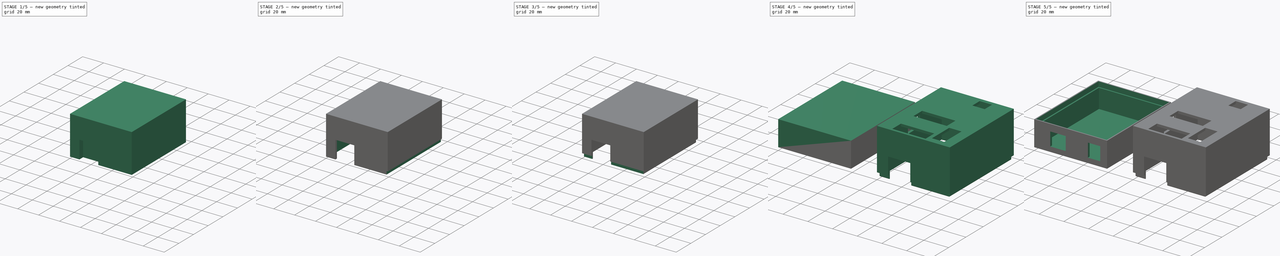
[diagram: build sequence overview — one tinted view per stage of 5, left to right]
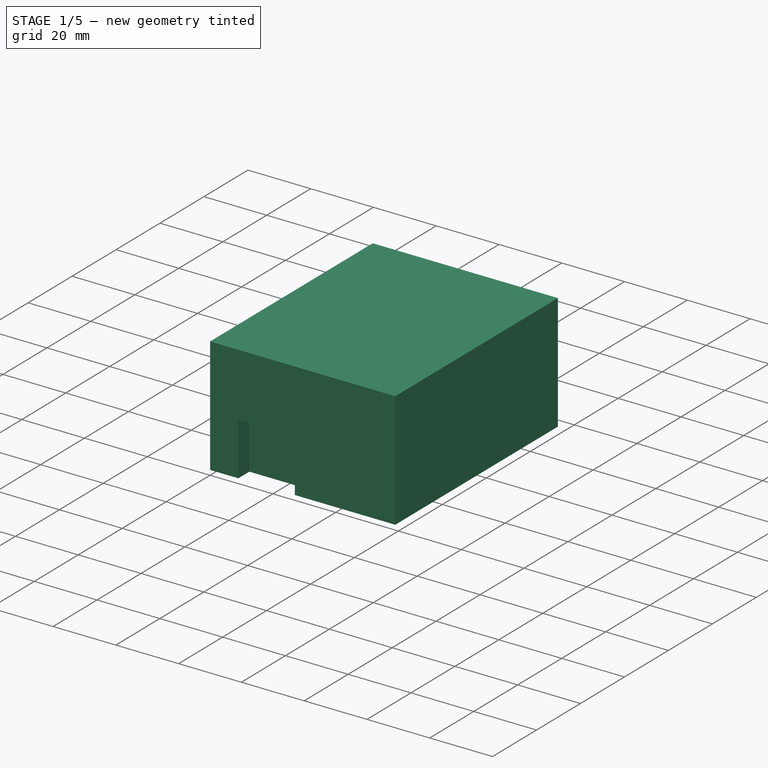
[diagram: stage 1 of 5 — iso view after this stage's code; geometry added in this stage tinted green]
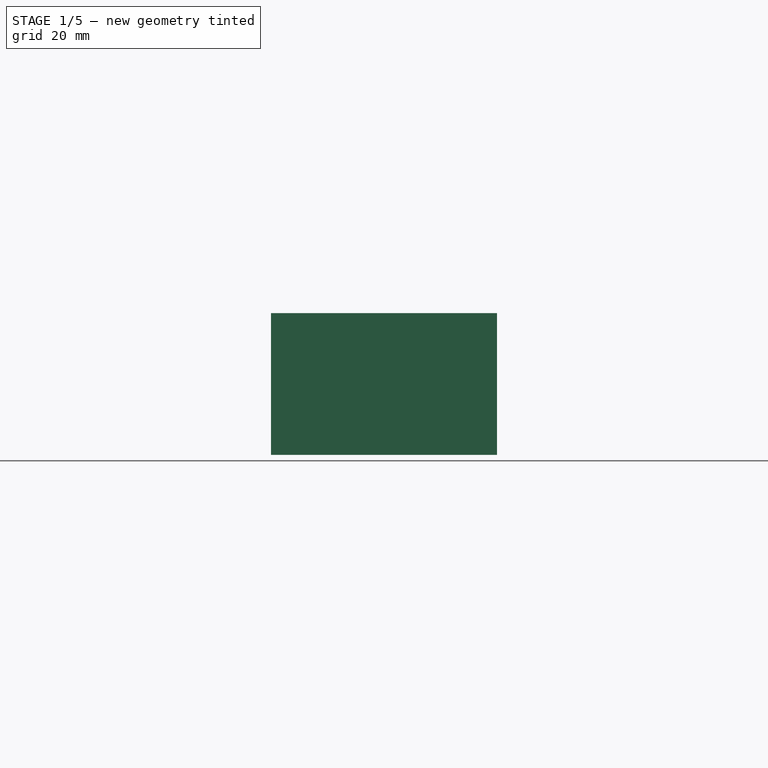
[diagram: stage 1 of 5 — front view after this stage's code; geometry added in this stage tinted green]
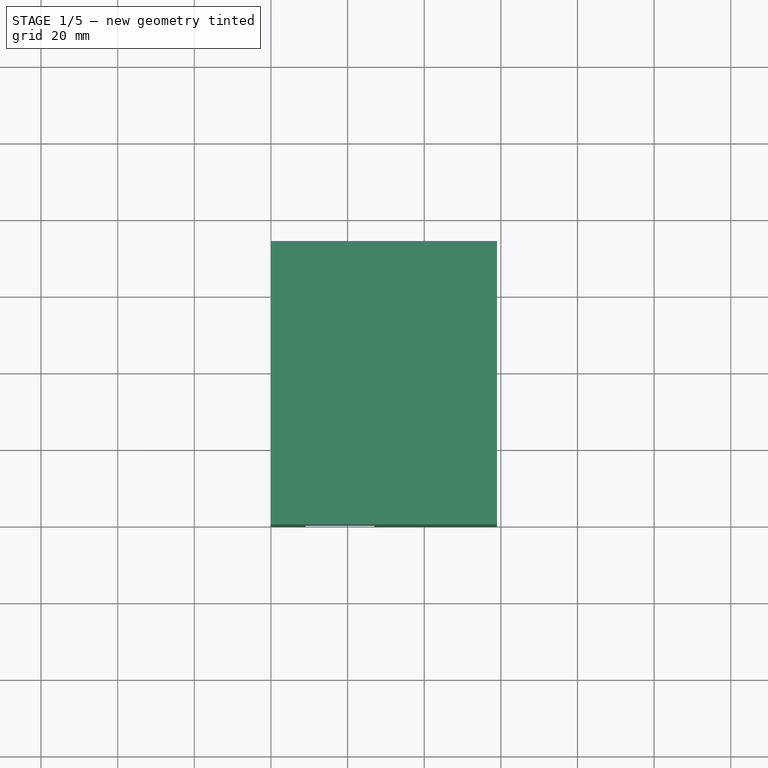
[diagram: stage 1 of 5 — top view after this stage's code; geometry added in this stage tinted green]
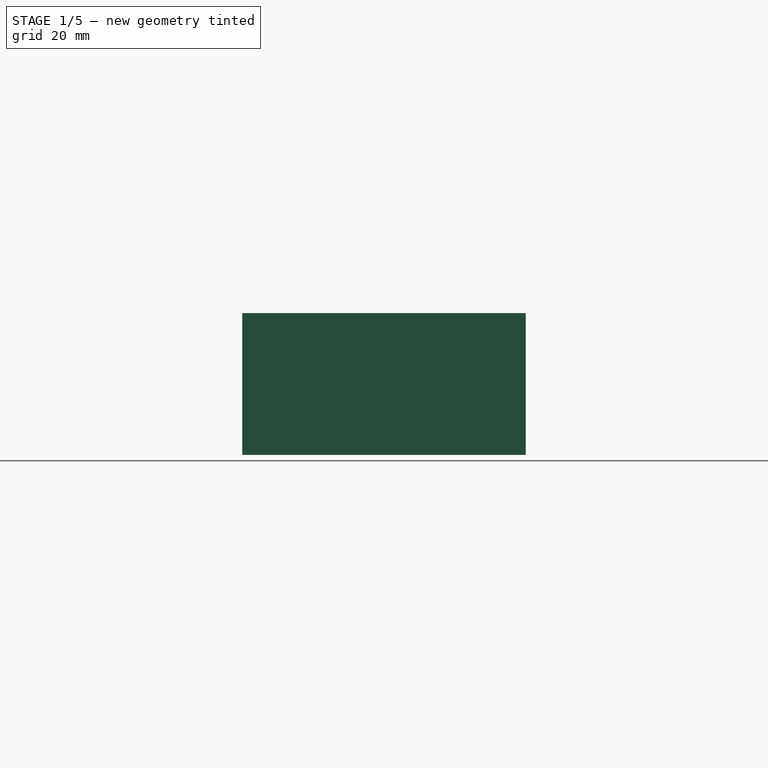
[diagram: stage 1 of 5 — right view after this stage's code; geometry added in this stage tinted green]
FCSTD DOCUMENT  (FreeCAD 0.14R3700 (Git))
Label: MRdatalogger
License: CC-BY 3.0
LicenseURL: http://creativecommons.org/licenses/by/3.0/
objects: Sketcher::SketchObject×14, PartDesign::Pocket×12, PartDesign::Pad×2, App::DocumentObjectGroup×2, Part::Fillet×1
note: 43 computed .brp shape members not serialized (recipe doc carries the construction recipe); baked Part::Feature solids carry a one-line shape summary decoded from their .brp

FEATURE [App::DocumentObjectGroup] Group  label="Bottom part"
  Group = -> [Pad,Pocket,Pocket001,Pocket002]
FEATURE [Sketcher::SketchObject] Sketch004
  sketch-geometry (4):
    g0: LineSegment StartX=0 StartY=0 StartZ=0 EndX=59 EndY=0 EndZ=0
    g1: LineSegment StartX=59 StartY=0 StartZ=0 EndX=59 EndY=74 EndZ=0
    g2: LineSegment StartX=59 StartY=74 StartZ=0 EndX=0 EndY=74 EndZ=0
    g3: LineSegment StartX=0 StartY=74 StartZ=0 EndX=0 EndY=0 EndZ=0
  constraints (11):
    c: Coincident(g0,g1)
    c: Coincident(g1,g2)
    c: Coincident(g2,g3)
    c: Coincident(g3,g0)
    c: Horizontal(g0)
    c: Horizontal(g2)
    c: Vertical(g1)
    c: Vertical(g3)
    c: Coincident(g0,g-1)
    c: DistanceX(g0) = 59
    c: DistanceY(g1) = 74
FEATURE [PartDesign::Pad] Pad001
  Length = 37
  Length2 = 100
  Sketch = -> Sketch004
  Type = 0
FEATURE [Sketcher::SketchObject] Sketch005
  Placement = pos=(0,0,0) rot=(1,0,0;1.5708rad)
  Support = -> Pad001 [Face1]
  sketch-geometry (4):
    g0: LineSegment StartX=9 StartY=0 StartZ=0 EndX=27 EndY=0 EndZ=0
    g1: LineSegment StartX=27 StartY=0 StartZ=0 EndX=27 EndY=17 EndZ=0
    g2: LineSegment StartX=27 StartY=17 StartZ=0 EndX=9 EndY=17 EndZ=0
    g3: LineSegment StartX=9 StartY=17 StartZ=0 EndX=9 EndY=0 EndZ=0
  constraints (12):
    c: Coincident(g0,g1)
    c: Coincident(g1,g2)
    c: Coincident(g2,g3)
    c: Coincident(g3,g0)
    c: Horizontal(g0)
    c: Horizontal(g2)
    c: Vertical(g1)
    c: Vertical(g3)
    c: PointOnObject(g0,g-1)
    c: DistanceX(g2) = -18
    c: DistanceY(g3) = -17
    c: DistanceX(g-1,g0) = 9
FEATURE [PartDesign::Pocket] Pocket003
  Length = 5
  Sketch = -> Sketch005
  Type = 0
FEATURE [Sketcher::SketchObject] Sketch006
  ExternalGeometry = -> [Pocket003]
  Placement = pos=(0,74,0) rot=(0,0.707107,0.707107;3.14159rad)
  Support = -> Pocket003 [Face10]
  sketch-geometry (4):
    g0: LineSegment StartX=-47 StartY=0 StartZ=0 EndX=-34 EndY=0 EndZ=0
    g1: LineSegment StartX=-34 StartY=0 StartZ=0 EndX=-34 EndY=5 EndZ=0
    g2: LineSegment StartX=-34 StartY=5 StartZ=0 EndX=-47 EndY=5 EndZ=0
    g3: LineSegment StartX=-47 StartY=5 StartZ=0 EndX=-47 EndY=0 EndZ=0
  constraints (12):
    c: Coincident(g0,g1)
    c: Coincident(g1,g2)
    c: Coincident(g2,g3)
    c: Coincident(g3,g0)
    c: Horizontal(g0)
    c: Horizontal(g2)
    c: Vertical(g1)
    c: Vertical(g3)
    c: PointOnObject(g0,g-1)
    c: DistanceX(g2) = -13
    c: DistanceY(g1) = 5
    c: DistanceX(g-3,g0) = 12
FEATURE [PartDesign::Pocket] Pocket004
  Length = 5
  Sketch = -> Sketch006
  Type = 0
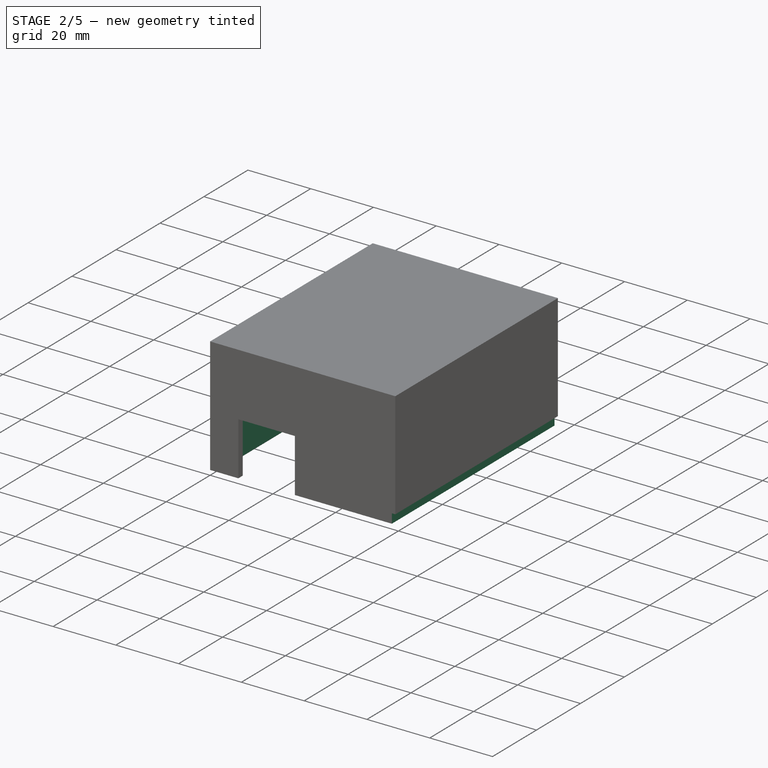
[diagram: stage 2 of 5 — iso view after this stage's code; geometry added in this stage tinted green]
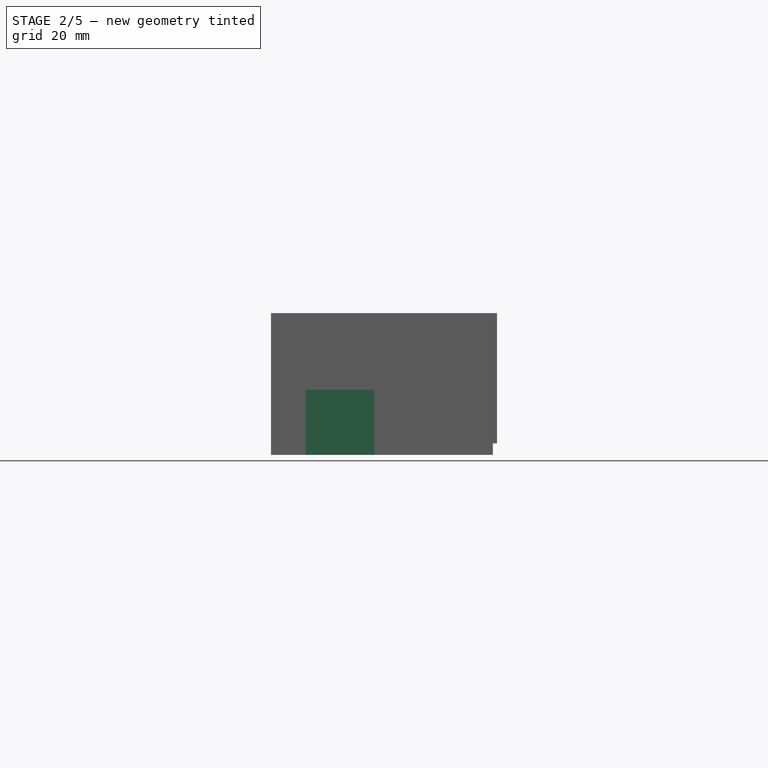
[diagram: stage 2 of 5 — front view after this stage's code; geometry added in this stage tinted green]
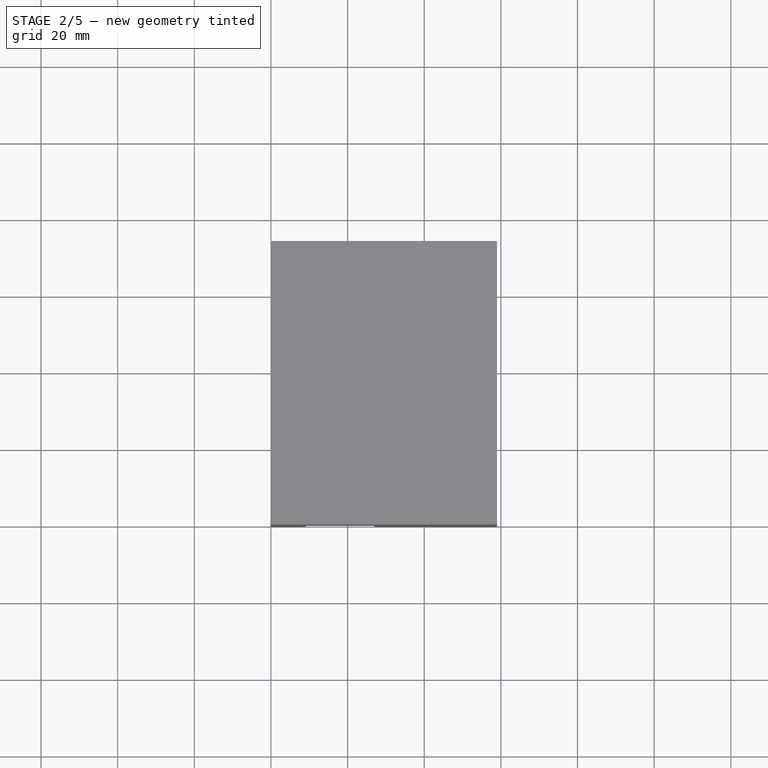
[diagram: stage 2 of 5 — top view after this stage's code; geometry added in this stage tinted green]
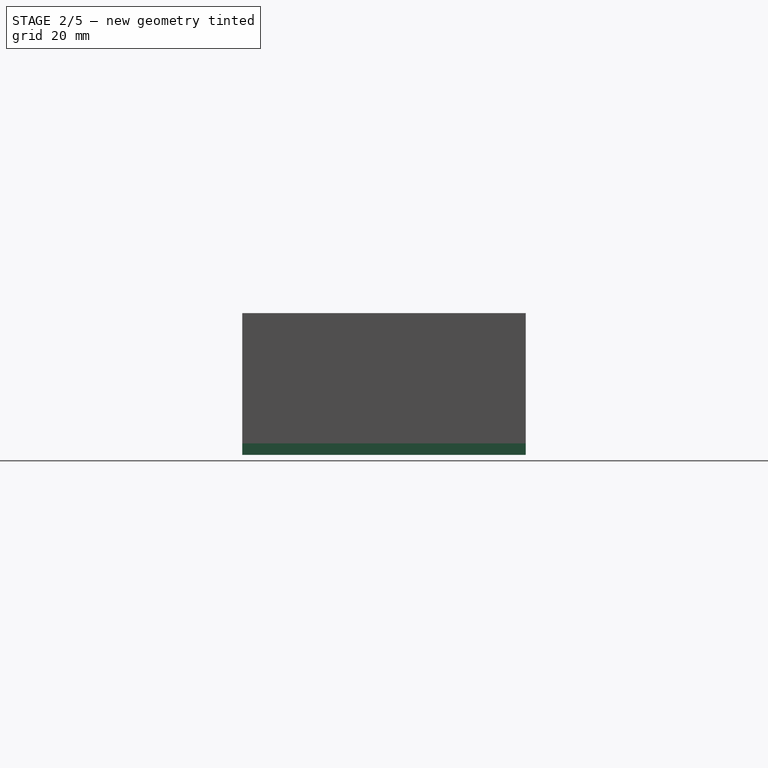
[diagram: stage 2 of 5 — right view after this stage's code; geometry added in this stage tinted green]
FEATURE [Sketcher::SketchObject] Sketch007
  Placement = pos=(0,0,0) rot=(0.57735,-0.57735,-0.57735;2.0944rad)
  Support = -> Pocket004 [Face8]
  sketch-geometry (4):
    g0: LineSegment StartX=-47 StartY=35 StartZ=0 EndX=-33 EndY=35 EndZ=0
    g1: LineSegment StartX=-33 StartY=35 StartZ=0 EndX=-33 EndY=19 EndZ=0
    g2: LineSegment StartX=-33 StartY=19 StartZ=0 EndX=-47 EndY=19 EndZ=0
    g3: LineSegment StartX=-47 StartY=19 StartZ=0 EndX=-47 EndY=35 EndZ=0
  constraints (10):
    c: Coincident(g0,g1)
    c: Coincident(g1,g2)
    c: Coincident(g2,g3)
    c: Coincident(g3,g0)
    c: Horizontal(g0)
    c: Horizontal(g2)
    c: Vertical(g1)
    c: Vertical(g3)
    c: DistanceX(g0) = 14
    c: DistanceY(g1) = -16
FEATURE [PartDesign::Pocket] Pocket005
  Length = 5
  Sketch = -> Sketch007
  Type = 0
FEATURE [Sketcher::SketchObject] Sketch009
  Placement = pos=(0,0,0) rot=(1,0,0;3.14159rad)
  Support = -> Pocket005 [Face2]
  sketch-geometry (4):
    g0: LineSegment StartX=2 StartY=-2 StartZ=0 EndX=57 EndY=-2 EndZ=0
    g1: LineSegment StartX=57 StartY=-2 StartZ=0 EndX=57 EndY=-72 EndZ=0
    g2: LineSegment StartX=57 StartY=-72 StartZ=0 EndX=2 EndY=-72 EndZ=0
    g3: LineSegment StartX=2 StartY=-72 StartZ=0 EndX=2 EndY=-2 EndZ=0
  constraints (10):
    c: Coincident(g0,g1)
    c: Coincident(g1,g2)
    c: Coincident(g2,g3)
    c: Coincident(g3,g0)
    c: Horizontal(g0)
    c: Horizontal(g2)
    c: Vertical(g1)
    c: Vertical(g3)
    c: DistanceX(g2) = -55
    c: DistanceY(g1) = -70
FEATURE [PartDesign::Pocket] Pocket006
  Length = 35
  Sketch = -> Sketch009
  Type = 0
FEATURE [Sketcher::SketchObject] Sketch010
  Placement = pos=(59,0,0) rot=(0.57735,0.57735,0.57735;2.0944rad)
  Support = -> Pocket006 [Face7]
  sketch-geometry (4):
    g0: LineSegment StartX=0 StartY=0 StartZ=0 EndX=74 EndY=0 EndZ=0
    g1: LineSegment StartX=74 StartY=0 StartZ=0 EndX=74 EndY=3 EndZ=0
    g2: LineSegment StartX=74 StartY=3 StartZ=0 EndX=0 EndY=3 EndZ=0
    g3: LineSegment StartX=0 StartY=3 StartZ=0 EndX=0 EndY=0 EndZ=0
  constraints (10):
    c: Coincident(g0,g1)
    c: Coincident(g1,g2)
    c: Coincident(g2,g3)
    c: Coincident(g3,g0)
    c: Horizontal(g0)
    c: Horizontal(g2)
    c: Vertical(g1)
    c: Vertical(g3)
    c: Coincident(g0,g-1)
    c: DistanceY(g3) = -3
FEATURE [PartDesign::Pocket] Pocket007
  Length = 1.1
  Sketch = -> Sketch010
  Type = 0
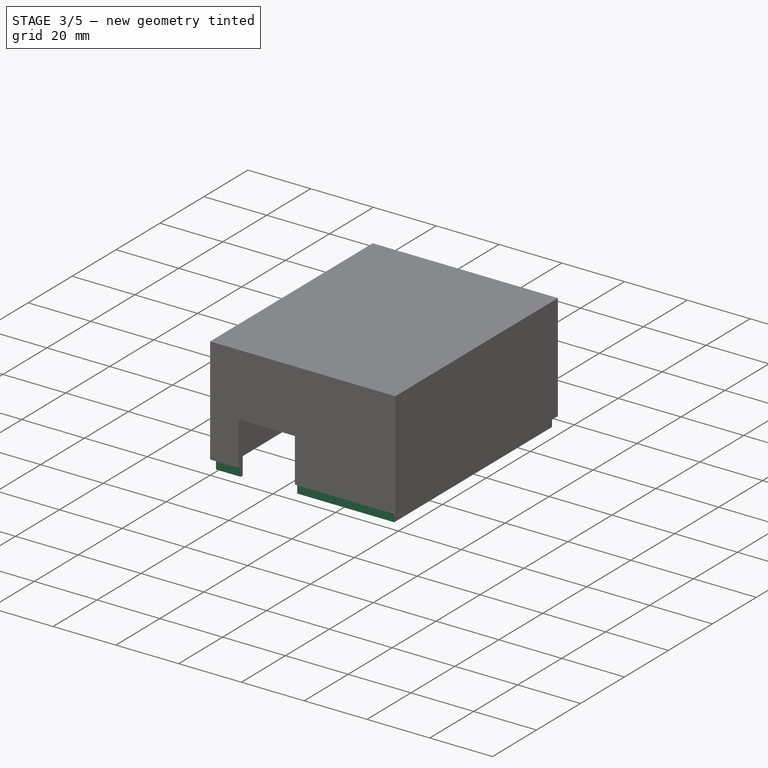
[diagram: stage 3 of 5 — iso view after this stage's code; geometry added in this stage tinted green]
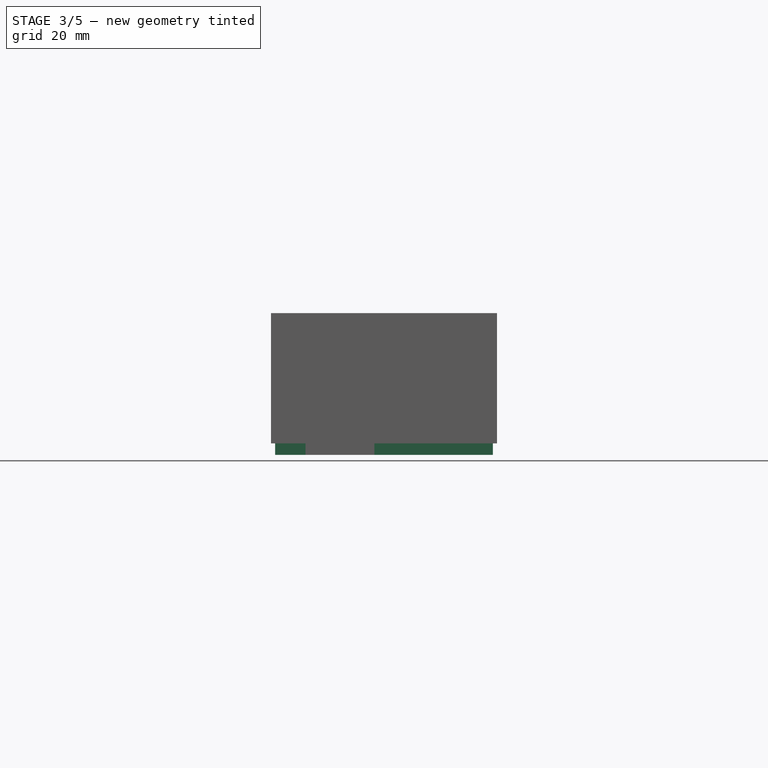
[diagram: stage 3 of 5 — front view after this stage's code; geometry added in this stage tinted green]
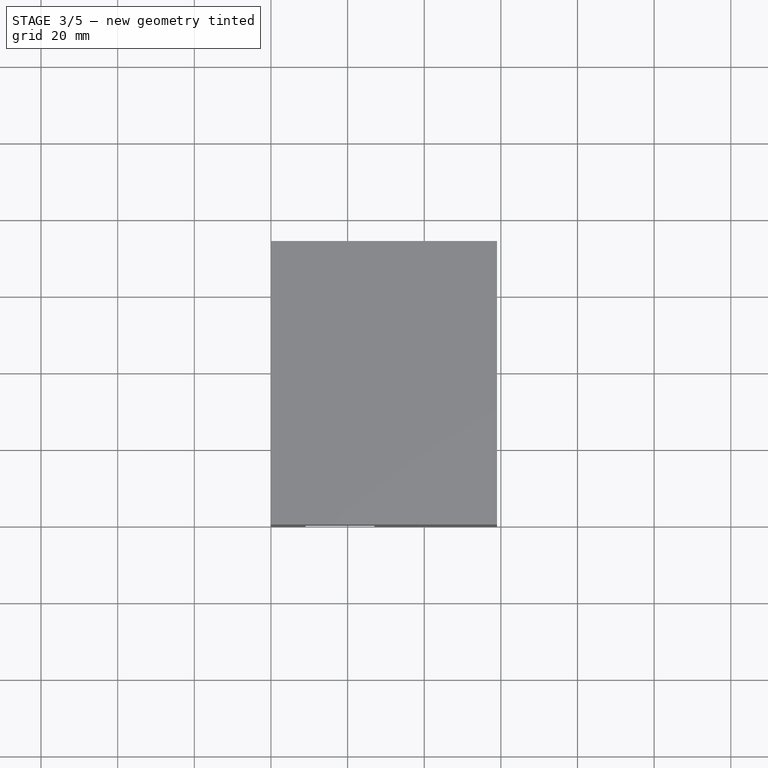
[diagram: stage 3 of 5 — top view after this stage's code; geometry added in this stage tinted green]
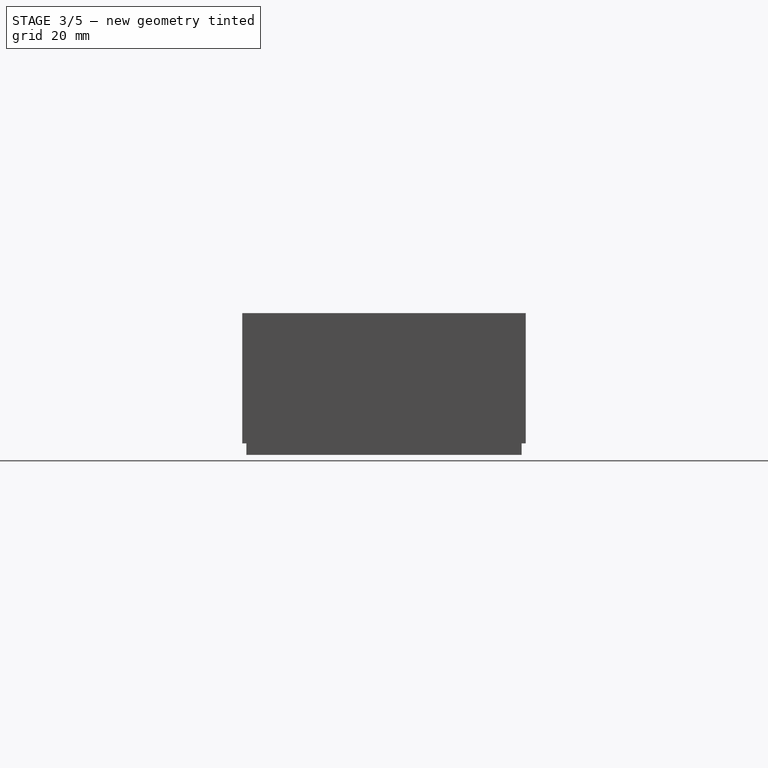
[diagram: stage 3 of 5 — right view after this stage's code; geometry added in this stage tinted green]
FEATURE [Sketcher::SketchObject] Sketch011
  Placement = pos=(0,0,0) rot=(1,0,0;1.5708rad)
  Support = -> Pocket007 [Face1]
  sketch-geometry (4):
    g0: LineSegment StartX=0 StartY=0 StartZ=0 EndX=59 EndY=0 EndZ=0
    g1: LineSegment StartX=59 StartY=0 StartZ=0 EndX=59 EndY=3 EndZ=0
    g2: LineSegment StartX=59 StartY=3 StartZ=0 EndX=0 EndY=3 EndZ=0
    g3: LineSegment StartX=0 StartY=3 StartZ=0 EndX=0 EndY=0 EndZ=0
  constraints (10):
    c: Coincident(g0,g1)
    c: Coincident(g1,g2)
    c: Coincident(g2,g3)
    c: Coincident(g3,g0)
    c: Horizontal(g0)
    c: Horizontal(g2)
    c: Vertical(g1)
    c: Vertical(g3)
    c: DistanceY(g1) = 3
    c: Coincident(g0,g-1)
FEATURE [PartDesign::Pocket] Pocket008
  Length = 1.1
  Sketch = -> Sketch011
  Type = 0
FEATURE [Sketcher::SketchObject] Sketch012
  Placement = pos=(0,0,0) rot=(0.57735,-0.57735,-0.57735;2.0944rad)
  Support = -> Pocket008 [Face10]
  sketch-geometry (4):
    g0: LineSegment StartX=0 StartY=0 StartZ=0 EndX=-74 EndY=0 EndZ=0
    g1: LineSegment StartX=-74 StartY=0 StartZ=0 EndX=-74 EndY=3 EndZ=0
    g2: LineSegment StartX=-74 StartY=3 StartZ=0 EndX=0 EndY=3 EndZ=0
    g3: LineSegment StartX=0 StartY=3 StartZ=0 EndX=0 EndY=0 EndZ=0
  constraints (10):
    c: Coincident(g0,g1)
    c: Coincident(g1,g2)
    c: Coincident(g2,g3)
    c: Coincident(g3,g0)
    c: Horizontal(g0)
    c: Horizontal(g2)
    c: Vertical(g1)
    c: Vertical(g3)
    c: Coincident(g0,g-1)
    c: DistanceY(g3) = -3
FEATURE [PartDesign::Pocket] Pocket009
  Length = 1.1
  Sketch = -> Sketch012
  Type = 0
FEATURE [Sketcher::SketchObject] Sketch013
  Placement = pos=(0,74,0) rot=(0,0.707107,0.707107;3.14159rad)
  Support = -> Pocket009 [Face16]
  sketch-geometry (4):
    g0: LineSegment StartX=0 StartY=0 StartZ=0 EndX=-59 EndY=0 EndZ=0
    g1: LineSegment StartX=-59 StartY=0 StartZ=0 EndX=-59 EndY=3 EndZ=0
    g2: LineSegment StartX=-59 StartY=3 StartZ=0 EndX=0 EndY=3 EndZ=0
    g3: LineSegment StartX=0 StartY=3 StartZ=0 EndX=0 EndY=0 EndZ=0
  constraints (9):
    c: Coincident(g0,g1)
    c: Coincident(g1,g2)
    c: Coincident(g2,g3)
    c: Coincident(g3,g0)
    c: Horizontal(g0)
    c: Horizontal(g2)
    c: Vertical(g1)
    c: Vertical(g3)
    c: Coincident(g0,g-1)
FEATURE [PartDesign::Pocket] Pocket010
  Length = 1.1
  Sketch = -> Sketch013
  Type = 0
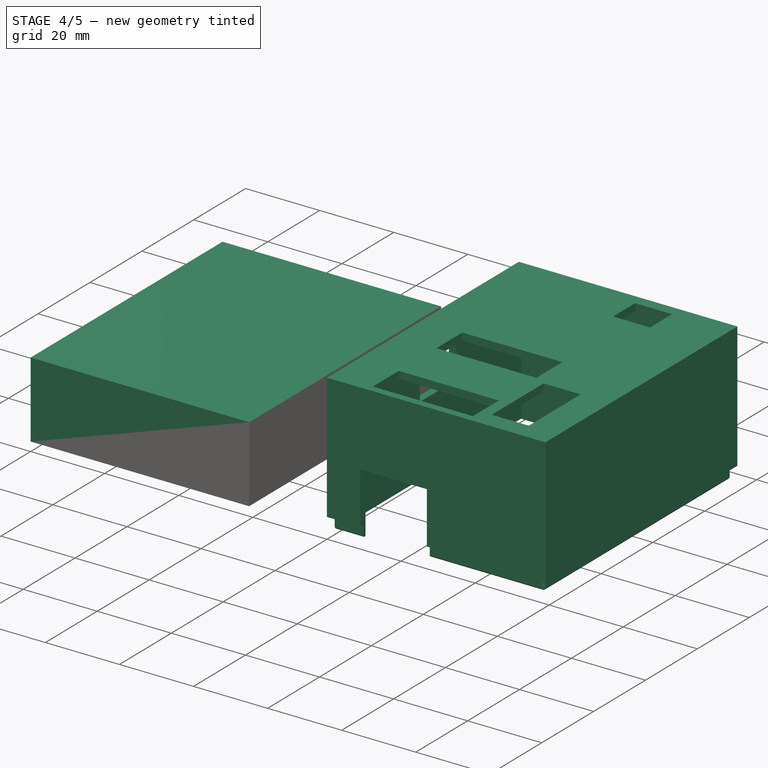
[diagram: stage 4 of 5 — iso view after this stage's code; geometry added in this stage tinted green]
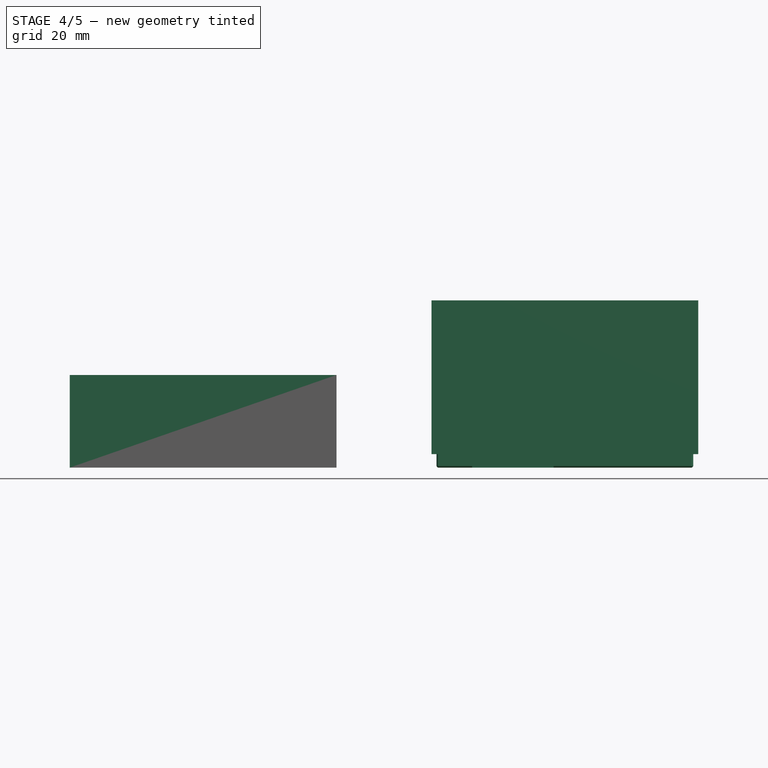
[diagram: stage 4 of 5 — front view after this stage's code; geometry added in this stage tinted green]
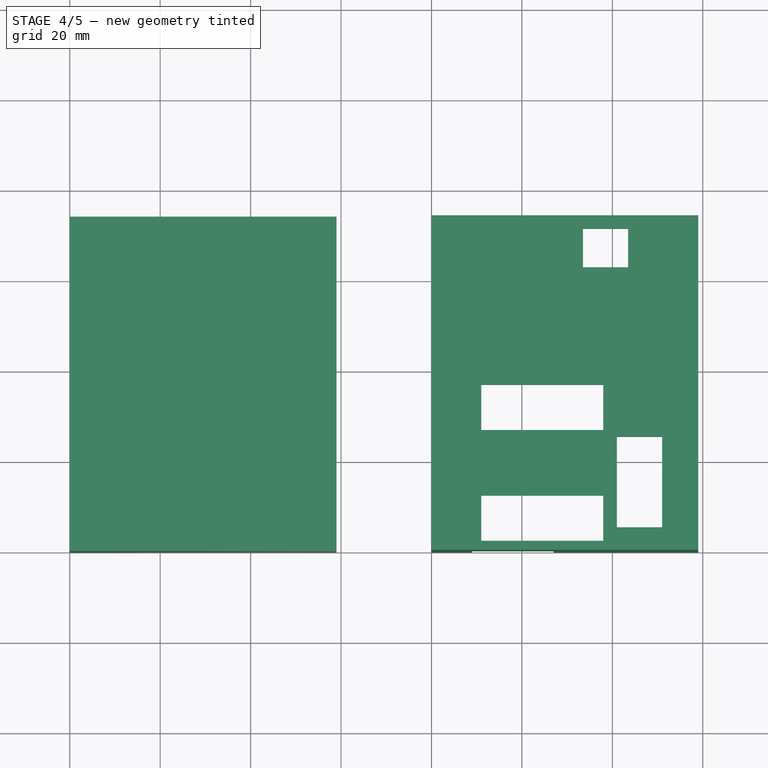
[diagram: stage 4 of 5 — top view after this stage's code; geometry added in this stage tinted green]
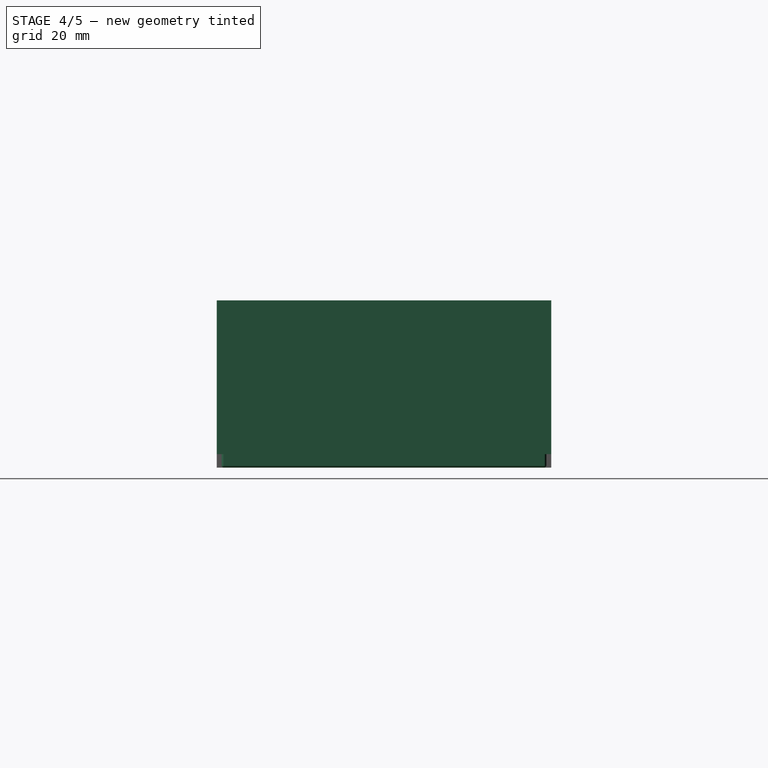
[diagram: stage 4 of 5 — right view after this stage's code; geometry added in this stage tinted green]
FEATURE [Sketcher::SketchObject] Sketch
  sketch-geometry (4):
    g0: LineSegment StartX=0 StartY=0 StartZ=0 EndX=59 EndY=0 EndZ=0
    g1: LineSegment StartX=59 StartY=0 StartZ=0 EndX=59 EndY=74 EndZ=0
    g2: LineSegment StartX=59 StartY=74 StartZ=0 EndX=0 EndY=74 EndZ=0
    g3: LineSegment StartX=0 StartY=74 StartZ=0 EndX=0 EndY=0 EndZ=0
  constraints (11):
    c: Coincident(g0,g1)
    c: Coincident(g1,g2)
    c: Coincident(g2,g3)
    c: Coincident(g3,g0)
    c: Horizontal(g0)
    c: Horizontal(g2)
    c: Vertical(g1)
    c: Vertical(g3)
    c: Coincident(g0,g-1)
    c: DistanceX(g0) = 59
    c: DistanceY(g1) = 74
FEATURE [PartDesign::Pad] Pad
  Length = 20.5
  Length2 = 100
  Sketch = -> Sketch
  Type = 0
FEATURE [Sketcher::SketchObject] Sketch014
  Placement = pos=(0,0,37) rot=(0,0,1;0rad)
  Support = -> Pocket010 [Face8]
  sketch-geometry (16):
    g0: LineSegment StartX=11 StartY=12 StartZ=0 EndX=38 EndY=12 EndZ=0
    g1: LineSegment StartX=38 StartY=12 StartZ=0 EndX=38 EndY=2 EndZ=0
    g2: LineSegment StartX=38 StartY=2 StartZ=0 EndX=11 EndY=2 EndZ=0
    g3: LineSegment StartX=11 StartY=2 StartZ=0 EndX=11 EndY=12 EndZ=0
    g4: LineSegment StartX=41 StartY=5 StartZ=0 EndX=51 EndY=5 EndZ=0
    g5: LineSegment StartX=51 StartY=5 StartZ=0 EndX=51 EndY=25 EndZ=0
    g6: LineSegment StartX=51 StartY=25 StartZ=0 EndX=41 EndY=25 EndZ=0
    g7: LineSegment StartX=41 StartY=25 StartZ=0 EndX=41 EndY=5 EndZ=0
    g8: LineSegment StartX=11 StartY=36.5 StartZ=0 EndX=38 EndY=36.5 EndZ=0
    g9: LineSegment StartX=38 StartY=36.5 StartZ=0 EndX=38 EndY=26.5 EndZ=0
    g10: LineSegment StartX=38 StartY=26.5 StartZ=0 EndX=11 EndY=26.5 EndZ=0
    g11: LineSegment StartX=11 StartY=26.5 StartZ=0 EndX=11 EndY=36.5 EndZ=0
    g12: LineSegment StartX=33.5 StartY=71 StartZ=0 EndX=43.5 EndY=71 EndZ=0
    g13: LineSegment StartX=43.5 StartY=71 StartZ=0 EndX=43.5 EndY=62.5 EndZ=0
    g14: LineSegment StartX=43.5 StartY=62.5 StartZ=0 EndX=33.5 EndY=62.5 EndZ=0
    g15: LineSegment StartX=33.5 StartY=62.5 StartZ=0 EndX=33.5 EndY=71 EndZ=0
  constraints (46):
    c: Coincident(g0,g1)
    c: Coincident(g1,g2)
    c: Coincident(g2,g3)
    c: Coincident(g3,g0)
    c: Horizontal(g0)
    c: Horizontal(g2)
    c: Vertical(g1)
    c: Vertical(g3)
    c: Coincident(g4,g5)
    c: Coincident(g5,g6)
    c: Coincident(g6,g7)
    c: Coincident(g7,g4)
    c: Horizontal(g4)
    c: Horizontal(g6)
    c: Vertical(g5)
    c: Vertical(g7)
    c: Coincident(g8,g9)
    c: Coincident(g9,g10)
    c: Coincident(g10,g11)
    c: Coincident(g11,g8)
    c: Horizontal(g8)
    c: Horizontal(g10)
    c: Vertical(g9)
    c: Vertical(g11)
    c: Coincident(g12,g13)
    c: Coincident(g13,g14)
    c: Coincident(g14,g15)
    c: Coincident(g15,g12)
    c: Horizontal(g12)
    c: Horizontal(g14)
    c: Vertical(g13)
    c: Vertical(g15)
    c: DistanceX(g0) = 27
    c: Equal(g10,g0)
    c: DistanceY(g3) = 10
    c: DistanceY(g11) = 10
    c: DistanceX(g4) = 10
    c: DistanceY(g5) = 20
    c: DistanceX(g10,g0) = 0
    c: DistanceX(g14) = -10
    c: DistanceY(g13) = -8.5
    c: DistanceX(g-1,g2) = 11
    c: DistanceY(g-1,g4) = 5
    c: DistanceY(g-1,g1) = 2
    c: DistanceY(g0,g10) = 14.5
    c: DistanceX(g-1,g4) = 51
FEATURE [PartDesign::Pocket] Pocket011
  Length = 5
  Sketch = -> Sketch014
  Type = 0
FEATURE [Part::Fillet] Fillet  label="Final Piece TOP"
  Base = -> Pocket011
  Edges = 10 edges r=0.5: [Edge59,Edge60,Edge65,Edge66,Edge93,Edge94,Edge95,Edge99,Edge135,Edge156]
  Placement = pos=(80,0,0) rot=(0,0,1;0rad)
FEATURE [App::DocumentObjectGroup] Group001  label="Top Part"
  Group = -> [Pad001,Pocket003,Pocket004,Pocket005,Pocket006,Pocket007,Pocket008,Pocket009,Pocket010,Pocket011,Fillet]
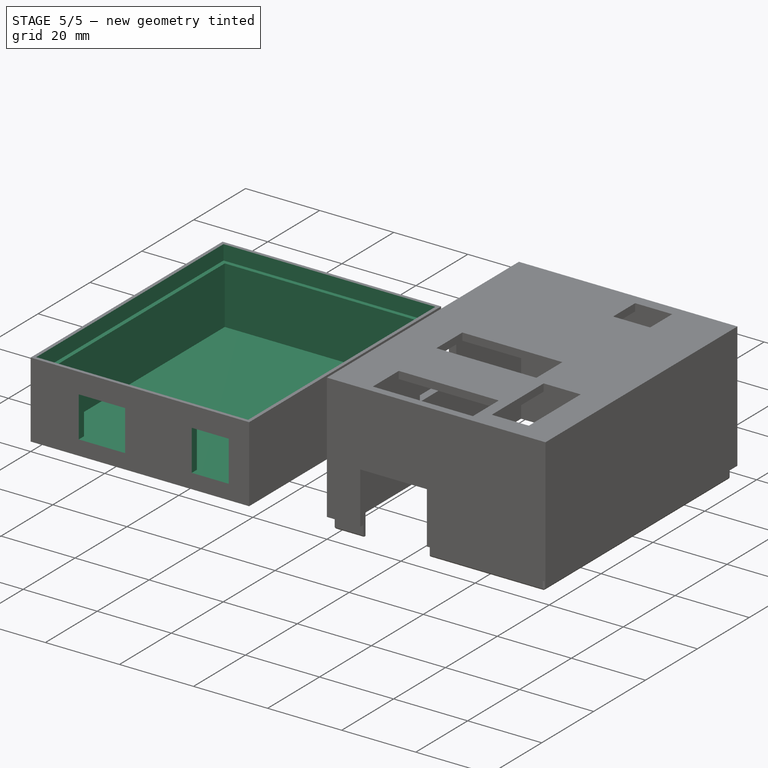
[diagram: stage 5 of 5 — iso view after this stage's code; geometry added in this stage tinted green]
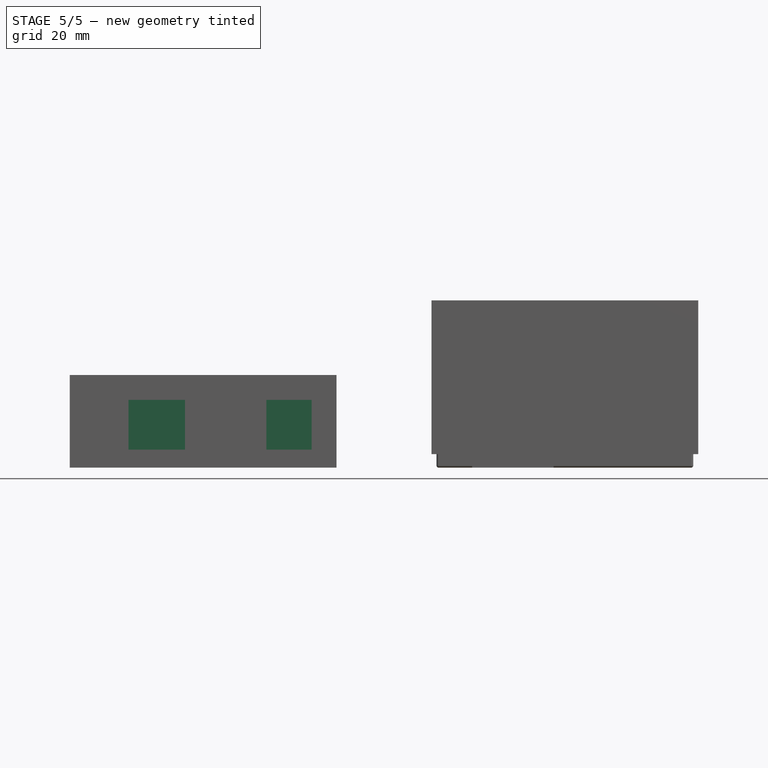
[diagram: stage 5 of 5 — front view after this stage's code; geometry added in this stage tinted green]
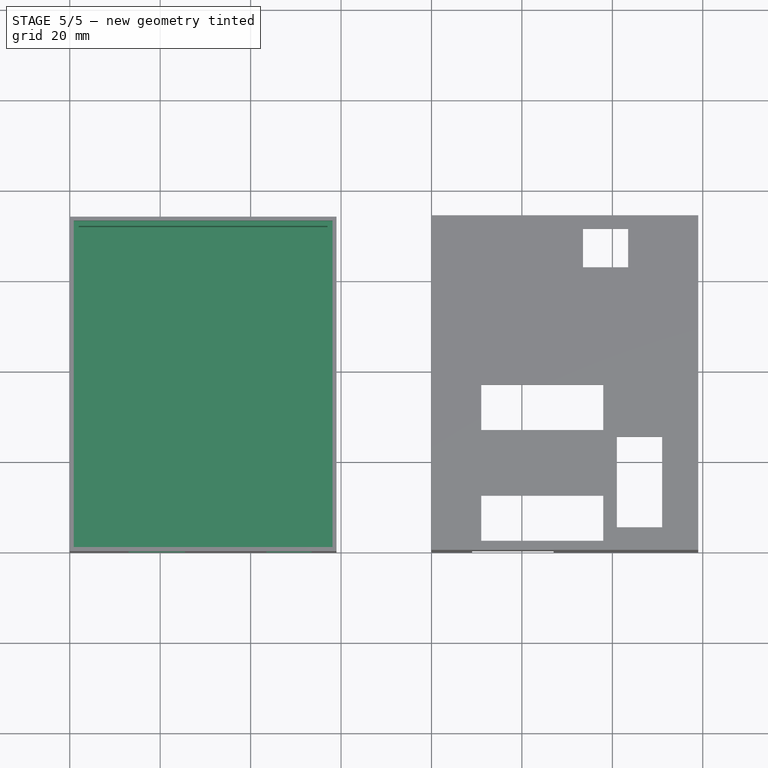
[diagram: stage 5 of 5 — top view after this stage's code; geometry added in this stage tinted green]
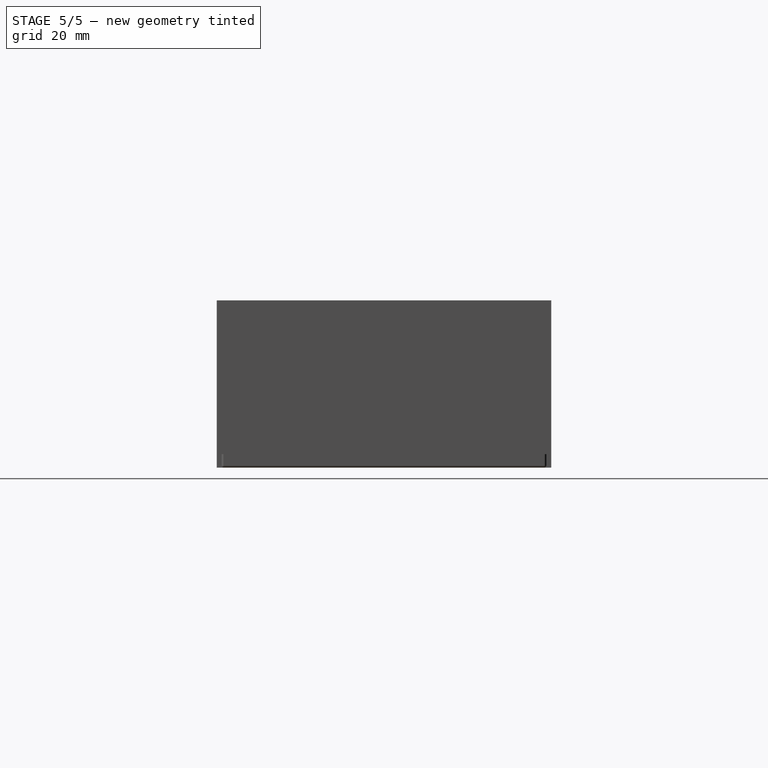
[diagram: stage 5 of 5 — right view after this stage's code; geometry added in this stage tinted green]
FEATURE [Sketcher::SketchObject] Sketch001
  Placement = pos=(0,0,20.5) rot=(0,0,1;0rad)
  Support = -> Pad [Face6]
  sketch-geometry (4):
    g0: LineSegment StartX=0.9 StartY=0.9 StartZ=0 EndX=58.1 EndY=0.9 EndZ=0
    g1: LineSegment StartX=58.1 StartY=0.9 StartZ=0 EndX=58.1 EndY=73.1 EndZ=0
    g2: LineSegment StartX=58.1 StartY=73.1 StartZ=0 EndX=0.9 EndY=73.1 EndZ=0
    g3: LineSegment StartX=0.9 StartY=73.1 StartZ=0 EndX=0.9 EndY=0.9 EndZ=0
  constraints (12):
    c: Coincident(g0,g1)
    c: Coincident(g1,g2)
    c: Coincident(g2,g3)
    c: Coincident(g3,g0)
    c: Horizontal(g0)
    c: Horizontal(g2)
    c: Vertical(g1)
    c: Vertical(g3)
    c: DistanceX(g0) = 57.2
    c: DistanceY(g1) = 72.2
    c: DistanceX(g-1,g0) = 0.9
    c: DistanceY(g-1,g0) = 0.9
FEATURE [PartDesign::Pocket] Pocket
  Length = 4
  Sketch = -> Sketch001
  Type = 0
FEATURE [Sketcher::SketchObject] Sketch002
  Placement = pos=(0,0,16.5) rot=(0,0,1;0rad)
  Support = -> Pocket [Face11]
  sketch-geometry (4):
    g0: LineSegment StartX=2 StartY=2 StartZ=0 EndX=57 EndY=2 EndZ=0
    g1: LineSegment StartX=57 StartY=2 StartZ=0 EndX=57 EndY=72 EndZ=0
    g2: LineSegment StartX=57 StartY=72 StartZ=0 EndX=2 EndY=72 EndZ=0
    g3: LineSegment StartX=2 StartY=72 StartZ=0 EndX=2 EndY=2 EndZ=0
  constraints (12):
    c: Coincident(g0,g1)
    c: Coincident(g1,g2)
    c: Coincident(g2,g3)
    c: Coincident(g3,g0)
    c: Horizontal(g0)
    c: Horizontal(g2)
    c: Vertical(g1)
    c: Vertical(g3)
    c: DistanceX(g0) = 55
    c: DistanceY(g1) = 70
    c: DistanceX(g-1,g0) = 2
    c: DistanceY(g-1,g0) = 2
FEATURE [PartDesign::Pocket] Pocket001
  Length = 15.5
  Sketch = -> Sketch002
  Type = 0
FEATURE [Sketcher::SketchObject] Sketch003
  Placement = pos=(0,0,0) rot=(1,0,0;1.5708rad)
  Support = -> Pocket001 [Face1]
  sketch-geometry (8):
    g0: LineSegment StartX=13 StartY=15 StartZ=0 EndX=25.5 EndY=15 EndZ=0
    g1: LineSegment StartX=25.5 StartY=15 StartZ=0 EndX=25.5 EndY=4 EndZ=0
    g2: LineSegment StartX=25.5 StartY=4 StartZ=0 EndX=13 EndY=4 EndZ=0
    g3: LineSegment StartX=13 StartY=4 StartZ=0 EndX=13 EndY=15 EndZ=0
    g4: LineSegment StartX=43.5 StartY=15 StartZ=0 EndX=53.5 EndY=15 EndZ=0
    g5: LineSegment StartX=53.5 StartY=15 StartZ=0 EndX=53.5 EndY=4 EndZ=0
    g6: LineSegment StartX=53.5 StartY=4 StartZ=0 EndX=43.5 EndY=4 EndZ=0
    g7: LineSegment StartX=43.5 StartY=4 StartZ=0 EndX=43.5 EndY=15 EndZ=0
  constraints (24):
    c: Coincident(g0,g1)
    c: Coincident(g1,g2)
    c: Coincident(g2,g3)
    c: Coincident(g3,g0)
    c: Horizontal(g0)
    c: Horizontal(g2)
    c: Vertical(g1)
    c: Vertical(g3)
    c: Coincident(g4,g5)
    c: Coincident(g5,g6)
    c: Coincident(g6,g7)
    c: Coincident(g7,g4)
    c: Horizontal(g4)
    c: Horizontal(g6)
    c: Vertical(g5)
    c: Vertical(g7)
    c: DistanceY(g1) = -11
    c: Equal(g7,g1)
    c: DistanceX(g2) = -12.5
    c: DistanceX(g6) = -10
    c: DistanceY(g-1,g2) = 4
    c: DistanceY(g-1,g6) = 4
    c: DistanceX(g-1,g2) = 13
    c: DistanceX(g-1,g5) = 53.5
FEATURE [PartDesign::Pocket] Pocket002  label="Final Piece BOTTOM"
  Length = 5
  Sketch = -> Sketch003
  Type = 0
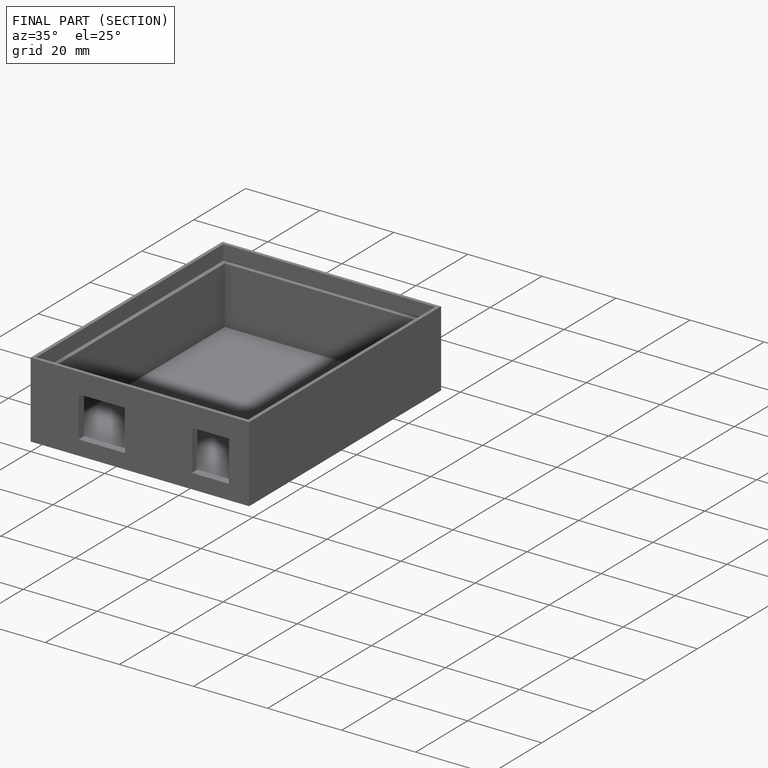
[diagram: finished part — half-section view (interior)]
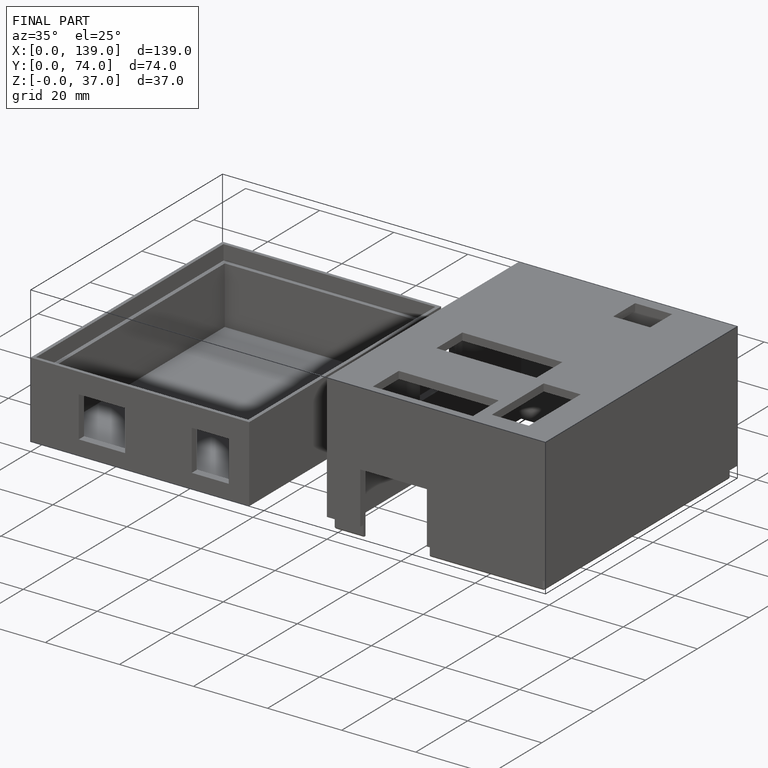
[diagram: finished part — iso view with bounding-box wireframe]
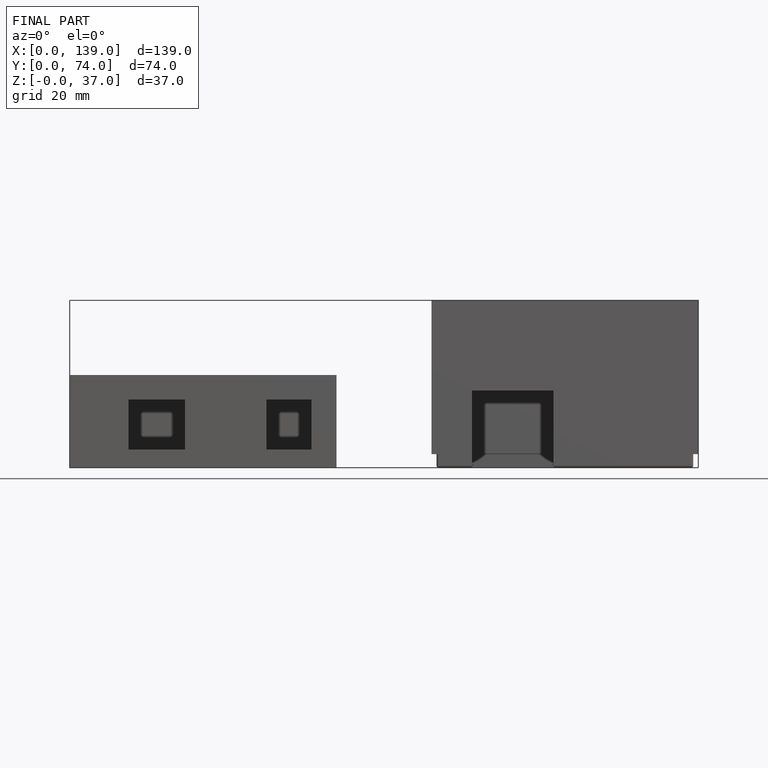
[diagram: finished part — front view with bounding-box wireframe]
